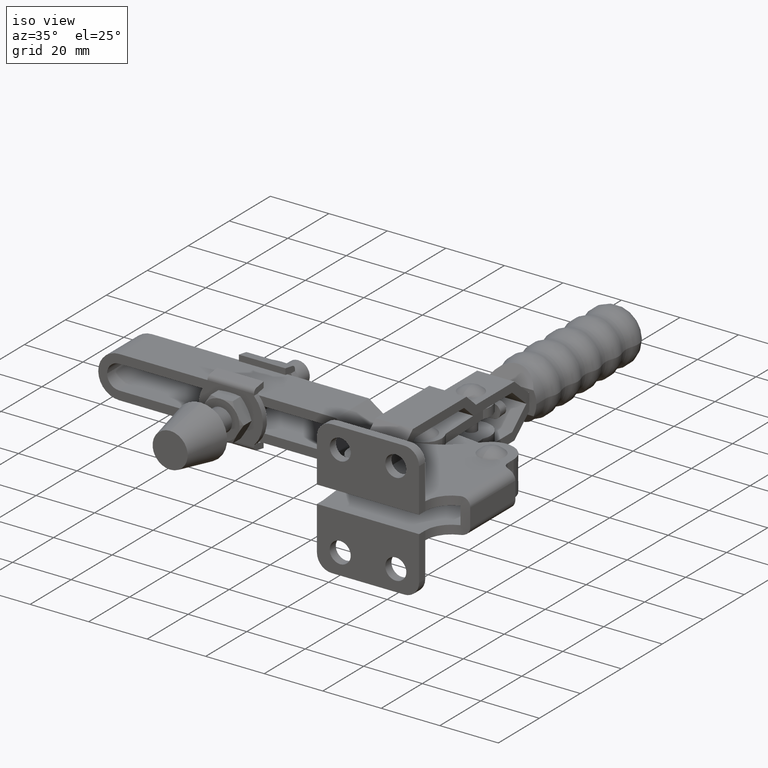
[diagram: clean part render]
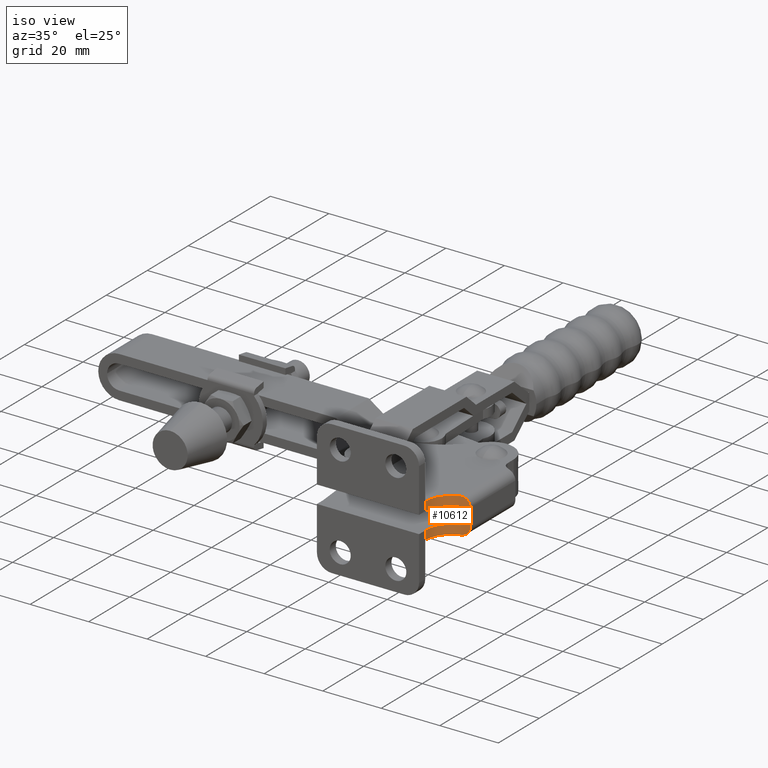
[diagram: same view with one face highlighted and labeled with its STEP entity id]
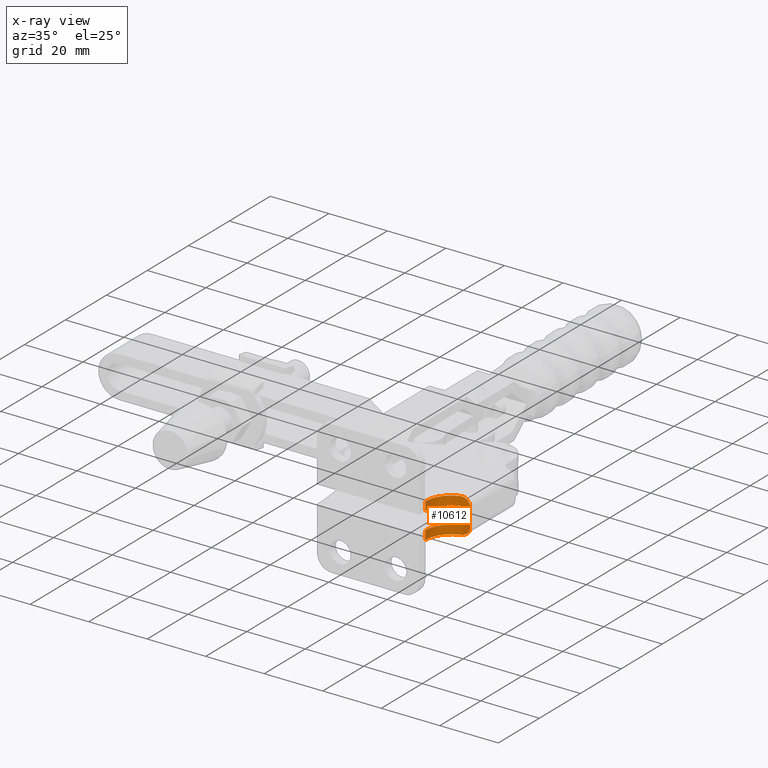
[diagram: x-ray of the same camera — body ghosted, the highlighted face saturated]
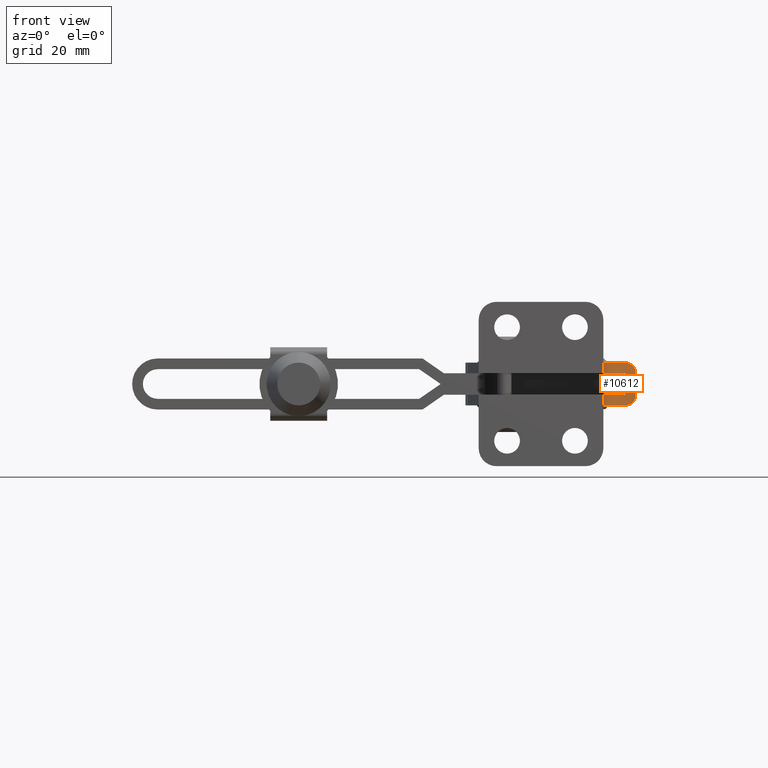
[diagram: same view with one face highlighted and labeled with its STEP entity id]
A machine part, iso view. The second image highlights one B-rep face of the part: STEP entity #10612.
The next image is the same camera in x-ray: the body ghosted, the highlighted face saturated — about 0% of this face is hidden behind the body in this view.
A second angle (front view) of the same face is appended — the face is thin or edge-on in the first view.
In plain terms, the highlighted cylindrical surface (edge-blend (fillet) strip) has radius 9 mm, axis along (-0, -0, -1).
Its self-contained STEP definition (entity closure, byte-faithful):
#8 = ORIENTED_EDGE ( 'NONE', *, *, #5342, .T. ) ;
#128 = AXIS2_PLACEMENT_3D ( 'NONE', #12003, #6435, #923 ) ;
#438 = ORIENTED_EDGE ( 'NONE', *, *, #7861, .T. ) ;
#663 = CARTESIAN_POINT ( 'NONE',  ( -2.366285323024440900, 11.71154325472867600, 5.936685948136331000 ) ) ;
#787 = CARTESIAN_POINT ( 'NONE',  ( -0.1424480960997506800, 11.99999999999995700, 3.928376445515170600 ) ) ;
#790 = EDGE_CURVE ( 'NONE', #3321, #9014, #7871, .T. ) ;
#819 = DIRECTION ( 'NONE',  ( -0.0000000000000000000, -0.0000000000000000000, -1.000000000000000000 ) ) ;
#904 = CARTESIAN_POINT ( 'NONE',  ( -3.000000000000113700, 11.51997652578924300, 6.000000000000060400 ) ) ;
#923 = DIRECTION ( 'NONE',  ( 1.000000000000000000, 0.0000000000000000000, 0.0000000000000000000 ) ) ;
#1155 = CARTESIAN_POINT ( 'NONE',  ( -1.455029430737918800, 11.90143962885640100, -5.593118010499078500 ) ) ;
#1173 = ORIENTED_EDGE ( 'NONE', *, *, #9903, .T. ) ;
#1270 = CARTESIAN_POINT ( 'NONE',  ( -2.367731599390967600, 11.71545280614732800, -5.950897235251658500 ) ) ;
#1288 = ORIENTED_EDGE ( 'NONE', *, *, #8971, .F. ) ;
#1380 = ORIENTED_EDGE ( 'NONE', *, *, #790, .T. ) ;
#1385 = VECTOR ( 'NONE', #11643, 1000.000000000000000 ) ;
#1386 = EDGE_CURVE ( 'NONE', #8798, #3321, #4704, .T. ) ;
#1428 = CIRCLE ( 'NONE', #128, 8.999999999999952000 ) ;
#1865 = CYLINDRICAL_SURFACE ( 'NONE', #9923, 8.999999999999952000 ) ;
#2193 = CARTESIAN_POINT ( 'NONE',  ( -0.9233089534881165900, 11.96626424947687900, -5.190559146336375400 ) ) ;
#2475 = DIRECTION ( 'NONE',  ( -0.0000000000000000000, -0.0000000000000000000, -1.000000000000000000 ) ) ;
#2525 = DIRECTION ( 'NONE',  ( -0.0000000000000000000, -0.0000000000000000000, -1.000000000000000000 ) ) ;
#2565 = VECTOR ( 'NONE', #2475, 1000.000000000000000 ) ;
#2657 = VERTEX_POINT ( 'NONE', #904 ) ;
#2662 = CARTESIAN_POINT ( 'NONE',  ( -0.1000000000002110300, 12.00000000000001100, 3.768114574787458300 ) ) ;
#2750 = CARTESIAN_POINT ( 'NONE',  ( -1.055555019540548500, 11.95010707909916700, 5.290481506695954300 ) ) ;
#2990 = EDGE_LOOP ( 'NONE', ( #5082, #1380, #1288, #438, #6467, #7139, #8886, #9462, #1173, #8 ) ) ;
#3120 = CARTESIAN_POINT ( 'NONE',  ( -3.000000000000113700, 11.51997652578924300, 3.000000000000002700 ) ) ;
#3151 = AXIS2_PLACEMENT_3D ( 'NONE', #10669, #5098, #11608 ) ;
#3252 = CARTESIAN_POINT ( 'NONE',  ( -3.000000000000113700, 11.51997652578924300, -6.000000000000060400 ) ) ;
#3321 = VERTEX_POINT ( 'NONE', #4055 ) ;
#3668 = LINE ( 'NONE', #11947, #8331 ) ;
#3757 = CARTESIAN_POINT ( 'NONE',  ( -0.3357540300747821100, 11.99717145579608900, 4.388966253454703400 ) ) ;
#3823 = CIRCLE ( 'NONE', #3151, 8.999999999999952000 ) ;
#3924 = CARTESIAN_POINT ( 'NONE',  ( -0.1000000000002110300, 3.000000000000002700, 3.000000000000000900 ) ) ;
#3956 = CARTESIAN_POINT ( 'NONE',  ( -9.099999999999719000, 3.000000000000000000, -5.999999999999998200 ) ) ;
#4055 = CARTESIAN_POINT ( 'NONE',  ( -3.000000000000113700, 11.51997652578924300, -6.000000000000060400 ) ) ;
#4253 = CARTESIAN_POINT ( 'NONE',  ( -0.6958270436924978200, 11.98220205871721900, -4.950162846173009600 ) ) ;
#4367 = CARTESIAN_POINT ( 'NONE',  ( -0.6005664005132285200, 11.98654335161696100, 4.808357580741170700 ) ) ;
#4442 = CARTESIAN_POINT ( 'NONE',  ( -2.207176135790649000, 11.75126524678583100, 5.897880626539353500 ) ) ;
#4493 = CARTESIAN_POINT ( 'NONE',  ( -9.100000000000163100, 3.000000000000004000, 6.000000000000000000 ) ) ;
#4521 = AXIS2_PLACEMENT_3D ( 'NONE', #3924, #10455, #4861 ) ;
#4591 = CARTESIAN_POINT ( 'NONE',  ( -1.318209695890797600, 11.91815380331310300, 5.489729541045465000 ) ) ;
#4680 = CARTESIAN_POINT ( 'NONE',  ( -0.1990419142502646300, 11.99971471030666200, 4.087229342582285000 ) ) ;
#4704 = CIRCLE ( 'NONE', #6304, 8.999999999999952000 ) ;
#4861 = DIRECTION ( 'NONE',  ( 1.000000000000000000, 8.673617379884081800E-016, -6.264279218805169800E-016 ) ) ;
#5045 = VERTEX_POINT ( 'NONE', #5280 ) ;
#5079 = DIRECTION ( 'NONE',  ( -1.000000000000000000, 0.0000000000000000000, 0.0000000000000000000 ) ) ;
#5082 = ORIENTED_EDGE ( 'NONE', *, *, #1386, .T. ) ;
#5098 = DIRECTION ( 'NONE',  ( -6.288077846766880800E-016, -0.0000000000000000000, 1.000000000000000000 ) ) ;
#5135 = CARTESIAN_POINT ( 'NONE',  ( -9.100000000000163100, 3.000000000000004000, 6.000000000000000000 ) ) ;
#5280 = CARTESIAN_POINT ( 'NONE',  ( -9.100000000000163100, 3.000000000000002700, -3.000000000000006700 ) ) ;
#5301 = CARTESIAN_POINT ( 'NONE',  ( -0.4160608059860704300, 11.99492266218743500, 4.533198284570104900 ) ) ;
#5342 = EDGE_CURVE ( 'NONE', #5045, #8798, #10930, .T. ) ;
#5386 = CARTESIAN_POINT ( 'NONE',  ( -1.899508547251076000, 11.81967140403865800, 5.795567986609957400 ) ) ;
#5465 = CARTESIAN_POINT ( 'NONE',  ( -0.1000000000002110300, 3.000000000000002700, -6.000000000000000000 ) ) ;
#5684 = VERTEX_POINT ( 'NONE', #2662 ) ;
#5715 = EDGE_CURVE ( 'NONE', #9839, #11158, #3668, .T. ) ;
#6010 = LINE ( 'NONE', #5135, #1385 ) ;
#6093 = CARTESIAN_POINT ( 'NONE',  ( -0.1858244488018386300, 11.99999999999995700, -4.092142929012583300 ) ) ;
#6304 = AXIS2_PLACEMENT_3D ( 'NONE', #5465, #11965, #6400 ) ;
#6392 = CARTESIAN_POINT ( 'NONE',  ( -2.841470099180195300, 11.57393638248441400, 6.000000000000063100 ) ) ;
#6400 = DIRECTION ( 'NONE',  ( 1.000000000000000000, 0.0000000000000000000, 0.0000000000000000000 ) ) ;
#6435 = DIRECTION ( 'NONE',  ( -0.0000000000000000000, -0.0000000000000000000, -1.000000000000000000 ) ) ;
#6467 = ORIENTED_EDGE ( 'NONE', *, *, #10791, .F. ) ;
#6547 = VERTEX_POINT ( 'NONE', #9583 ) ;
#6672 = CARTESIAN_POINT ( 'NONE',  ( -0.1000000000002110300, 12.00000000000001100, -3.768114574787458300 ) ) ;
#7036 = CARTESIAN_POINT ( 'NONE',  ( -0.1000000000002110300, 3.000000000000002700, 6.000000000000000000 ) ) ;
#7062 = CARTESIAN_POINT ( 'NONE',  ( -0.1000000000002110300, 12.00000000000001100, 3.768114574787458300 ) ) ;
#7139 = ORIENTED_EDGE ( 'NONE', *, *, #9939, .T. ) ;
#7159 = CARTESIAN_POINT ( 'NONE',  ( -0.1000000000002110300, 12.00000000000001100, -3.768114574787458300 ) ) ;
#7226 = LINE ( 'NONE', #11727, #2565 ) ;
#7722 = CARTESIAN_POINT ( 'NONE',  ( -1.745100538854354100, 11.85411590392391500, -5.744591985312352400 ) ) ;
#7861 = EDGE_CURVE ( 'NONE', #5684, #2657, #11422, .T. ) ;
#7871 = B_SPLINE_CURVE_WITH_KNOTS ( 'NONE', 3,
 ( #3252, #8887, #1270, #7722, #1155, #2193, #4253, #7914, #6093, #6672 ),
 .UNSPECIFIED., .F., .F.,
 ( 4, 2, 2, 2, 4 ),
 ( 0.0000000000000000000, 0.0009917933507253258800, 0.001983586701450650900, 0.002975380052175976300, 0.003967173402901301800 ),
 .UNSPECIFIED. ) ;
#7914 = CARTESIAN_POINT ( 'NONE',  ( -0.3222418698570873000, 11.99919842213191000, -4.393542082473978800 ) ) ;
#7978 = DIRECTION ( 'NONE',  ( -0.0000000000000000000, -0.0000000000000000000, -1.000000000000000000 ) ) ;
#8131 = CARTESIAN_POINT ( 'NONE',  ( -0.7057744013742745000, 11.98031339134558800, 4.940076440244515000 ) ) ;
#8255 = CIRCLE ( 'NONE', #4521, 8.999999999999952000 ) ;
#8331 = VECTOR ( 'NONE', #819, 1000.000000000000000 ) ;
#8798 = VERTEX_POINT ( 'NONE', #3956 ) ;
#8886 = ORIENTED_EDGE ( 'NONE', *, *, #10452, .T. ) ;
#8887 = CARTESIAN_POINT ( 'NONE',  ( -2.682745923381237400, 11.62796236582176800, -6.000000000000063100 ) ) ;
#8971 = EDGE_CURVE ( 'NONE', #5684, #9014, #7226, .T. ) ;
#8972 = CARTESIAN_POINT ( 'NONE',  ( -3.000000000000113700, 11.51997652578924300, -3.000000000000002700 ) ) ;
#9014 = VERTEX_POINT ( 'NONE', #7159 ) ;
#9299 = CARTESIAN_POINT ( 'NONE',  ( -0.9330031791140305200, 11.96209221865783300, 5.180571446623282000 ) ) ;
#9462 = ORIENTED_EDGE ( 'NONE', *, *, #5715, .T. ) ;
#9583 = CARTESIAN_POINT ( 'NONE',  ( -9.100000000000163100, 3.000000000000004000, 3.000000000000006700 ) ) ;
#9839 = VERTEX_POINT ( 'NONE', #3120 ) ;
#9903 = EDGE_CURVE ( 'NONE', #11158, #5045, #3823, .T. ) ;
#9914 = CARTESIAN_POINT ( 'NONE',  ( -1.459620368939646800, 11.89792675473513300, 5.579555434772787600 ) ) ;
#9923 = AXIS2_PLACEMENT_3D ( 'NONE', #7036, #7978, #5079 ) ;
#9939 = EDGE_CURVE ( 'NONE', #10761, #6547, #6010, .T. ) ;
#10452 = EDGE_CURVE ( 'NONE', #6547, #9839, #8255, .T. ) ;
#10455 = DIRECTION ( 'NONE',  ( -6.288077846766817700E-016, 0.0000000000000000000, -1.000000000000000000 ) ) ;
#10612 = ADVANCED_FACE ( 'NONE', ( #11724 ), #1865, .F. ) ;
#10669 = CARTESIAN_POINT ( 'NONE',  ( -0.1000000000002110300, 3.000000000000002700, -3.000000000000000900 ) ) ;
#10761 = VERTEX_POINT ( 'NONE', #4493 ) ;
#10791 = EDGE_CURVE ( 'NONE', #10761, #2657, #1428, .T. ) ;
#10885 = CARTESIAN_POINT ( 'NONE',  ( -9.100000000000163100, 3.000000000000004000, 6.000000000000000000 ) ) ;
#10930 = LINE ( 'NONE', #10885, #11220 ) ;
#11145 = CARTESIAN_POINT ( 'NONE',  ( -2.682973759437034200, 11.62295086396904200, 5.987509499999991800 ) ) ;
#11158 = VERTEX_POINT ( 'NONE', #8972 ) ;
#11220 = VECTOR ( 'NONE', #2525, 1000.000000000000000 ) ;
#11422 = B_SPLINE_CURVE_WITH_KNOTS ( 'NONE', 3,
 ( #7062, #787, #4680, #3757, #5301, #4367, #8131, #9299, #2750, #4591, #9914, #11837, #5386, #4442, #663, #11145, #6392, #11717 ),
 .UNSPECIFIED., .F., .F.,
 ( 4, 2, 2, 2, 2, 2, 2, 2, 4 ),
 ( 0.0007740044069051222400, 0.001269340220910436500, 0.001764676034915750600, 0.002260011848921064700, 0.002755347662926378700, 0.003250683476931692800, 0.003746019290937007700, 0.004241355104942322700, 0.004736690918947638500 ),
 .UNSPECIFIED. ) ;
#11608 = DIRECTION ( 'NONE',  ( -1.000000000000000000, 1.782910239198394600E-015, -6.264279218805169800E-016 ) ) ;
#11643 = DIRECTION ( 'NONE',  ( -0.0000000000000000000, -0.0000000000000000000, -1.000000000000000000 ) ) ;
#11717 = CARTESIAN_POINT ( 'NONE',  ( -3.000000000000113700, 11.51997652578924300, 6.000000000000060400 ) ) ;
#11724 = FACE_OUTER_BOUND ( 'NONE', #2990, .T. ) ;
#11727 = CARTESIAN_POINT ( 'NONE',  ( -0.1000000000002110300, 12.00000000000001100, 6.000000000000000000 ) ) ;
#11837 = CARTESIAN_POINT ( 'NONE',  ( -1.749877991034159100, 11.84870446421215100, 5.732045133512756700 ) ) ;
#11947 = CARTESIAN_POINT ( 'NONE',  ( -3.000000000000113700, 11.51997652578924300, 6.000000000000000000 ) ) ;
#11965 = DIRECTION ( 'NONE',  ( -0.0000000000000000000, -0.0000000000000000000, -1.000000000000000000 ) ) ;
#12003 = CARTESIAN_POINT ( 'NONE',  ( -0.1000000000002110300, 3.000000000000002700, 6.000000000000000000 ) ) ;